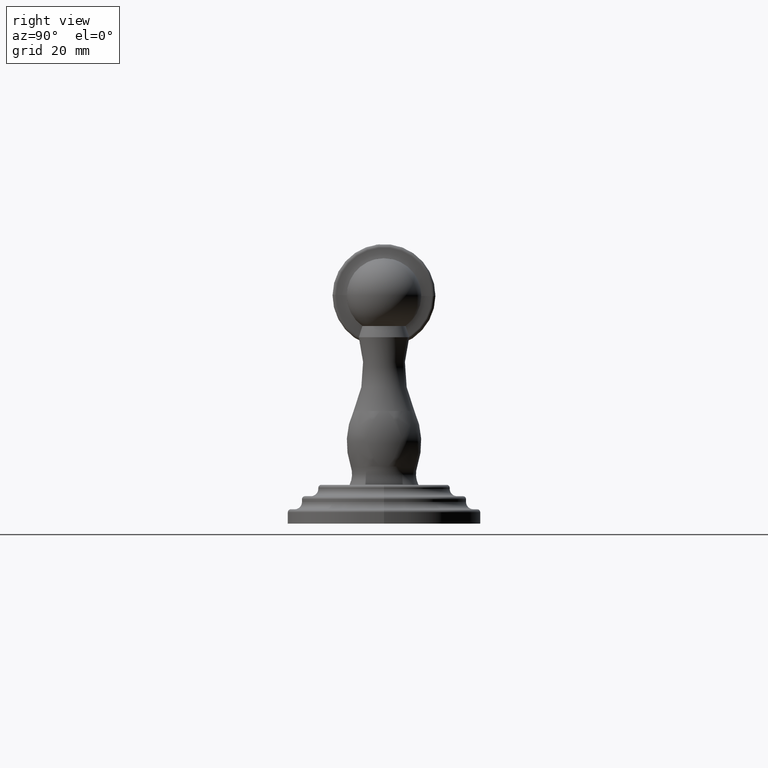
[diagram: clean part render]
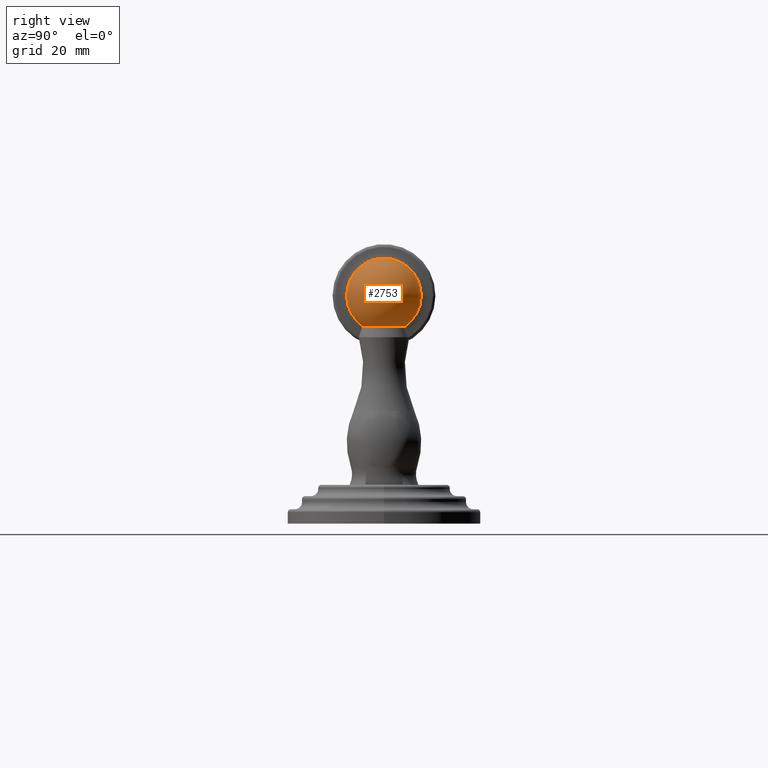
[diagram: same view with one face highlighted and labeled with its STEP entity id]
A machine part, right view. The second image highlights one B-rep face of the part: STEP entity #2753.
In plain terms, the highlighted spherical surface has radius 12.5161 mm.
Its self-contained STEP definition (entity closure, byte-faithful):
#1909=CARTESIAN_POINT('',(3.E0,0.E0,2.609816716349E0));
#1910=DIRECTION('',(0.E0,0.E0,1.E0));
#1911=DIRECTION('',(0.E0,-1.E0,0.E0));
#1912=AXIS2_PLACEMENT_3D('',#1909,#1910,#1911);
#1917=CARTESIAN_POINT('',(3.E0,0.E0,3.012E0));
#1918=DIRECTION('',(-1.E0,0.E0,0.E0));
#1919=DIRECTION('',(0.E0,-5.777923051402E-1,-8.161838347583E-1));
#1920=AXIS2_PLACEMENT_3D('',#1917,#1918,#1919);
#1933=CARTESIAN_POINT('',(3.E0,0.E0,3.012E0));
#1934=DIRECTION('',(1.E0,0.E0,0.E0));
#1935=DIRECTION('',(0.E0,5.777923051402E-1,-8.161838347583E-1));
#1936=AXIS2_PLACEMENT_3D('',#1933,#1934,#1935);
#2037=CARTESIAN_POINT('',(3.E0,-2.847133166006E-1,2.609816716349E0));
#2038=VERTEX_POINT('',#2037);
#2039=CARTESIAN_POINT('',(3.E0,0.E0,3.504760658229E0));
#2040=VERTEX_POINT('',#2039);
#2047=CARTESIAN_POINT('',(3.E0,2.847133166006E-1,2.609816716349E0));
#2048=VERTEX_POINT('',#2047);
#2741=CARTESIAN_POINT('',(3.E0,0.E0,3.012E0));
#2742=DIRECTION('',(0.E0,0.E0,1.E0));
#2743=DIRECTION('',(0.E0,-1.E0,0.E0));
#2744=AXIS2_PLACEMENT_3D('',#2741,#2742,#2743);
#2745=SPHERICAL_SURFACE('',#2744,4.927606582291E-1);
#2747=ORIENTED_EDGE('',*,*,#2746,.T.);
#2749=ORIENTED_EDGE('',*,*,#2748,.F.);
#2750=ORIENTED_EDGE('',*,*,#2722,.F.);
#2751=EDGE_LOOP('',(#2747,#2749,#2750));
#2752=FACE_OUTER_BOUND('',#2751,.F.);
#1913=CIRCLE('',#1912,2.847133166006E-1);
#1921=CIRCLE('',#1920,4.927606582291E-1);
#1937=CIRCLE('',#1936,4.927606582291E-1);
#2722=EDGE_CURVE('',#2038,#2048,#1913,.T.);
#2746=EDGE_CURVE('',#2038,#2040,#1921,.T.);
#2748=EDGE_CURVE('',#2048,#2040,#1937,.T.);
#2753=ADVANCED_FACE('',(#2752),#2745,.T.);